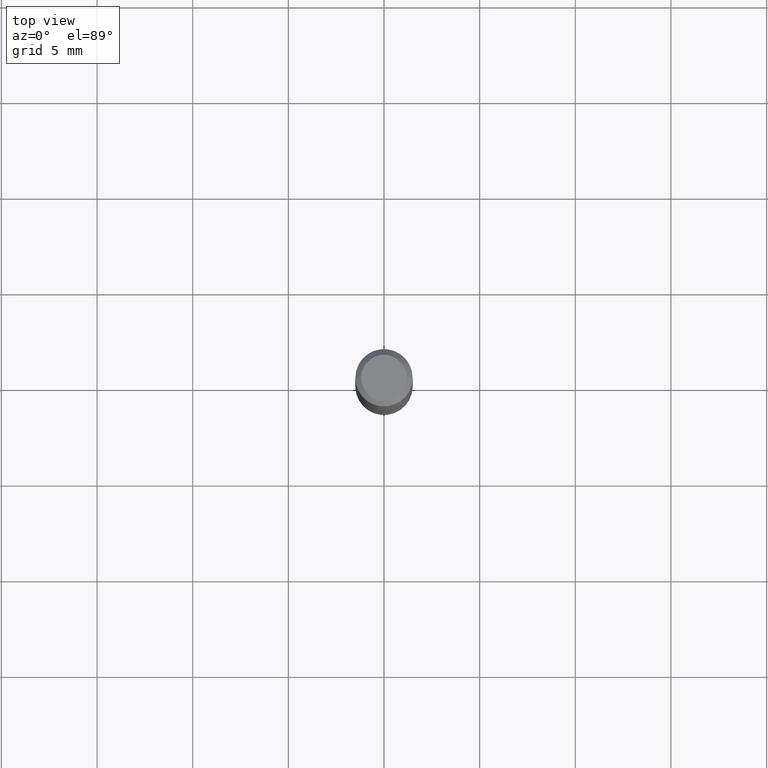
[diagram: clean part render]
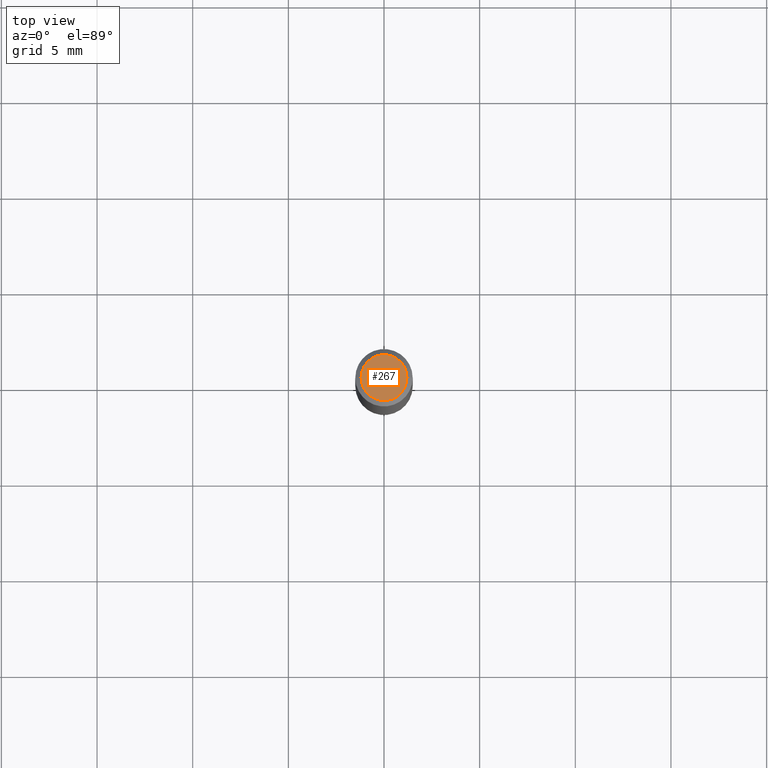
[diagram: same view with one face highlighted and labeled with its STEP entity id]
A machine part, top view. The second image highlights one B-rep face of the part: STEP entity #267.
In plain terms, the highlighted planar face has unit normal (0, -0, -1).
Its self-contained STEP definition (entity closure, byte-faithful):
#8 = CARTESIAN_POINT ( 'NONE',  ( 8.265746106709734507E-48, -1.180129479067563789E-33, -3.380025165646692144E-19 ) ) ;
#9 = VERTEX_POINT ( 'NONE', #138 ) ;
#56 = VERTEX_POINT ( 'NONE', #475 ) ;
#73 = CIRCLE ( 'NONE', #410, 0.04724000000000000421 ) ;
#97 = CIRCLE ( 'NONE', #121, 0.04724000000000000421 ) ;
#105 = CARTESIAN_POINT ( 'NONE',  ( 4.132873053354867254E-48, -5.900647395337818946E-34, -1.690012582823346072E-19 ) ) ;
#121 = AXIS2_PLACEMENT_3D ( 'NONE', #8, #396, #163 ) ;
#138 = CARTESIAN_POINT ( 'NONE',  ( 0.04724000000000000421, -3.852183633974369838E-16, -3.380025165621689721E-19 ) ) ;
#163 = DIRECTION ( 'NONE',  ( 1.000000000000000000, -6.982962677686266711E-15, 4.876185090822587894E-29 ) ) ;
#190 = DIRECTION ( 'NONE',  ( -1.000000000000000000, 6.982962677686265922E-15, -4.876176775795935793E-29 ) ) ;
#225 = FACE_OUTER_BOUND ( 'NONE', #368, .T. ) ;
#226 = DIRECTION ( 'NONE',  ( 2.438088387897960049E-29, -3.491481338843145188E-15, -1.000000000000000000 ) ) ;
#248 = DIRECTION ( 'NONE',  ( 1.000000000000000000, -6.982962677686266711E-15, 4.876185090822587894E-29 ) ) ;
#267 = ADVANCED_FACE ( 'NONE', ( #225 ), #372, .F. ) ;
#271 = DIRECTION ( 'NONE',  ( -2.445468806185136597E-29, 3.491481338843145583E-15, 1.000000000000000000 ) ) ;
#315 = EDGE_CURVE ( 'NONE', #56, #9, #97, .T. ) ;
#340 = EDGE_CURVE ( 'NONE', #9, #56, #73, .T. ) ;
#351 = CARTESIAN_POINT ( 'NONE',  ( 8.265746106709734507E-48, -1.180129479067563789E-33, -3.380025165646692144E-19 ) ) ;
#368 = EDGE_LOOP ( 'NONE', ( #464, #421 ) ) ;
#372 = PLANE ( 'NONE',  #427 ) ;
#396 = DIRECTION ( 'NONE',  ( -2.445468806185136597E-29, 3.491481338843145583E-15, 1.000000000000000000 ) ) ;
#410 = AXIS2_PLACEMENT_3D ( 'NONE', #351, #271, #248 ) ;
#421 = ORIENTED_EDGE ( 'NONE', *, *, #340, .T. ) ;
#427 = AXIS2_PLACEMENT_3D ( 'NONE', #105, #226, #190 ) ;
#464 = ORIENTED_EDGE ( 'NONE', *, *, #315, .T. ) ;
#475 = CARTESIAN_POINT ( 'NONE',  ( -0.04724000000000000421, 3.504923541997677355E-16, -3.380025165670481712E-19 ) ) ;